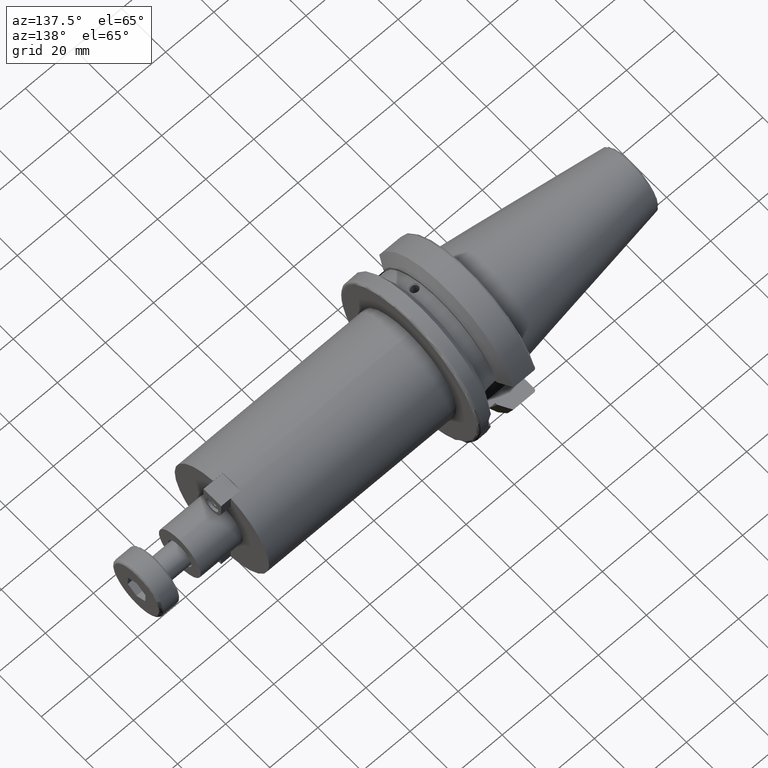
[diagram: clean part render]
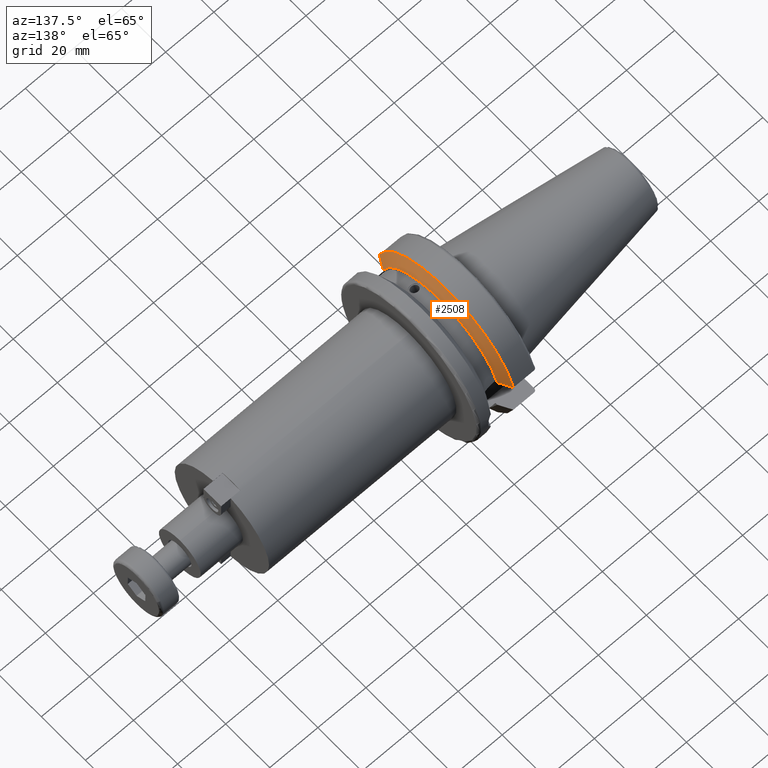
[diagram: same view with one face highlighted and labeled with its STEP entity id]
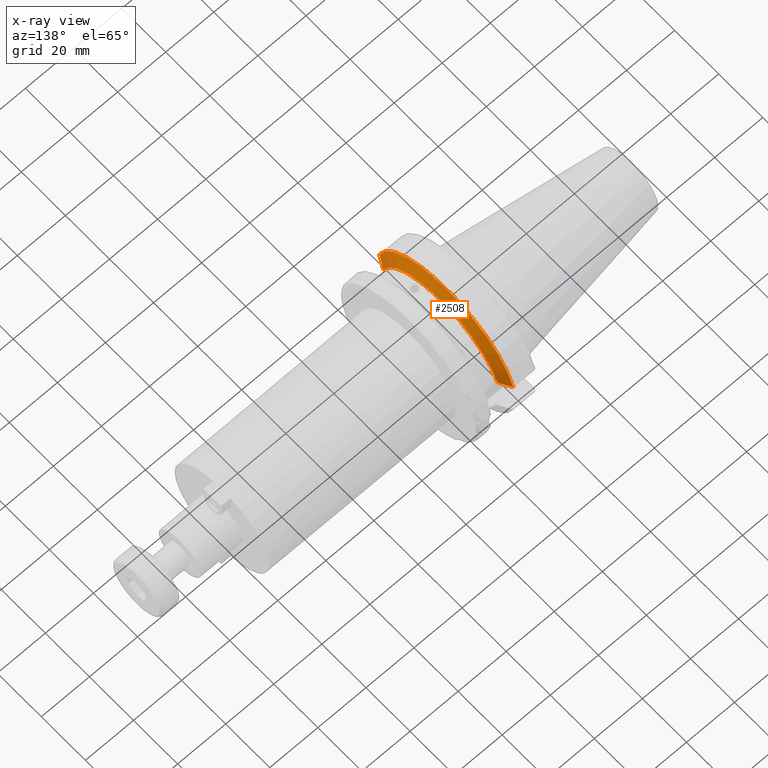
[diagram: x-ray of the same camera — body ghosted, the highlighted face saturated]
A machine part, auxiliary view. The second image highlights one B-rep face of the part: STEP entity #2508.
The next image is the same camera in x-ray: the body ghosted, the highlighted face saturated — about 0% of this face is hidden behind the body in this view.
In plain terms, the highlighted conical surface has half-angle 60.125 deg.
Its self-contained STEP definition (entity closure, byte-faithful):
#480=(
BOUNDED_CURVE()
B_SPLINE_CURVE(2,(#4235,#4236,#4237),.UNSPECIFIED.,.F.,.F.)
B_SPLINE_CURVE_WITH_KNOTS((3,3),(0.,0.52358279083281),.UNSPECIFIED.)
CURVE()
GEOMETRIC_REPRESENTATION_ITEM()
RATIONAL_B_SPLINE_CURVE((1.,1.00307360097546,1.))
REPRESENTATION_ITEM('')
);
#483=(
BOUNDED_CURVE()
B_SPLINE_CURVE(2,(#4395,#4396,#4397),.UNSPECIFIED.,.F.,.F.)
B_SPLINE_CURVE_WITH_KNOTS((3,3),(0.,0.52358279083281),.UNSPECIFIED.)
CURVE()
GEOMETRIC_REPRESENTATION_ITEM()
RATIONAL_B_SPLINE_CURVE((1.,1.00307360097546,1.))
REPRESENTATION_ITEM('')
);
#664=CIRCLE('',#2864,31.5000000000001);
#665=CIRCLE('',#2866,27.0940716549138);
#746=CONICAL_SURFACE('',#2865,29.2970358274569,1.0493792127616);
#816=FACE_OUTER_BOUND('',#954,.T.);
#954=EDGE_LOOP('',(#2128,#2129,#2130,#2131));
#1371=VERTEX_POINT('',#4232);
#1372=VERTEX_POINT('',#4234);
#1403=VERTEX_POINT('',#4392);
#1404=VERTEX_POINT('',#4394);
#1602=EDGE_CURVE('',#1372,#1371,#480,.T.);
#1647=EDGE_CURVE('',#1404,#1403,#483,.T.);
#1668=EDGE_CURVE('',#1403,#1372,#664,.T.);
#1669=EDGE_CURVE('',#1404,#1371,#665,.T.);
#2128=ORIENTED_EDGE('',*,*,#1602,.T.);
#2129=ORIENTED_EDGE('',*,*,#1669,.F.);
#2130=ORIENTED_EDGE('',*,*,#1647,.T.);
#2131=ORIENTED_EDGE('',*,*,#1668,.T.);
#2508=ADVANCED_FACE('',(#816),#746,.T.);
#2864=AXIS2_PLACEMENT_3D('',#4438,#3407,#3408);
#2865=AXIS2_PLACEMENT_3D('',#4439,#3409,#3410);
#2866=AXIS2_PLACEMENT_3D('',#4440,#3411,#3412);
#3407=DIRECTION('center_axis',(1.,0.,0.));
#3408=DIRECTION('ref_axis',(0.,0.,-1.));
#3409=DIRECTION('center_axis',(-1.,0.,0.));
#3410=DIRECTION('ref_axis',(0.,1.,0.));
#3411=DIRECTION('center_axis',(1.,0.,0.));
#3412=DIRECTION('ref_axis',(0.,0.,-1.));
#4232=CARTESIAN_POINT('',(14.1,-25.8705666509569,8.05));
#4234=CARTESIAN_POINT('',(11.5690363073382,-30.4540227227866,8.05));
#4235=CARTESIAN_POINT('Ctrl Pts',(11.5690363073382,-30.4540227227866,8.05));
#4236=CARTESIAN_POINT('Ctrl Pts',(12.9374976962938,-27.989970265181,8.05));
#4237=CARTESIAN_POINT('Ctrl Pts',(14.1,-25.8705666509569,8.05));
#4392=CARTESIAN_POINT('',(11.5690363073382,30.4540227227866,8.05));
#4394=CARTESIAN_POINT('',(14.1,25.8705666509569,8.05));
#4395=CARTESIAN_POINT('Ctrl Pts',(14.1,25.8705666509569,8.05));
#4396=CARTESIAN_POINT('Ctrl Pts',(12.9374976962938,27.989970265181,8.05));
#4397=CARTESIAN_POINT('Ctrl Pts',(11.5690363073382,30.4540227227866,8.05));
#4438=CARTESIAN_POINT('Origin',(11.5690363073382,0.,0.));
#4439=CARTESIAN_POINT('Origin',(12.8345181536691,0.,0.));
#4440=CARTESIAN_POINT('Origin',(14.1,0.,0.));